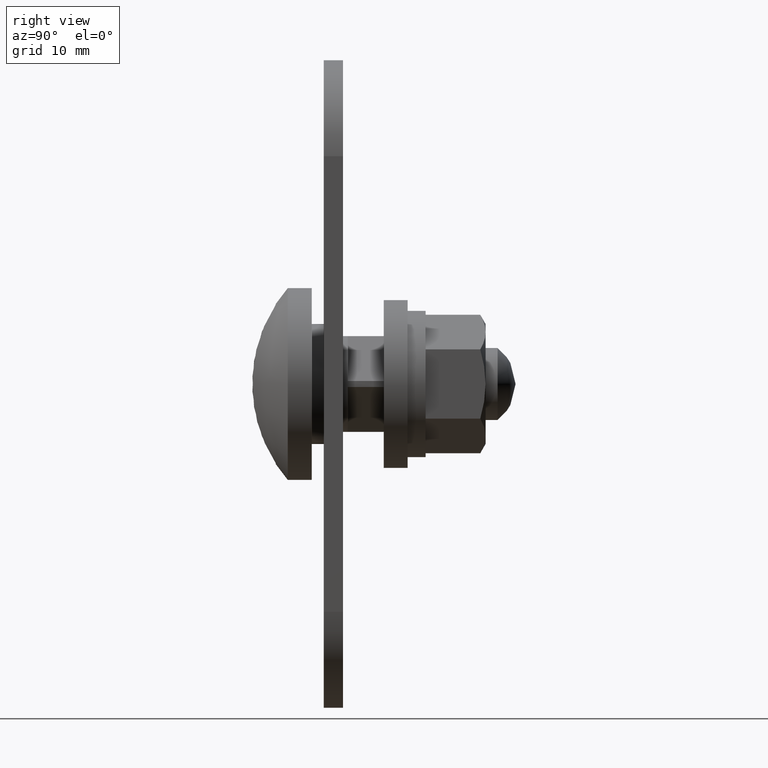
[diagram: clean part render]
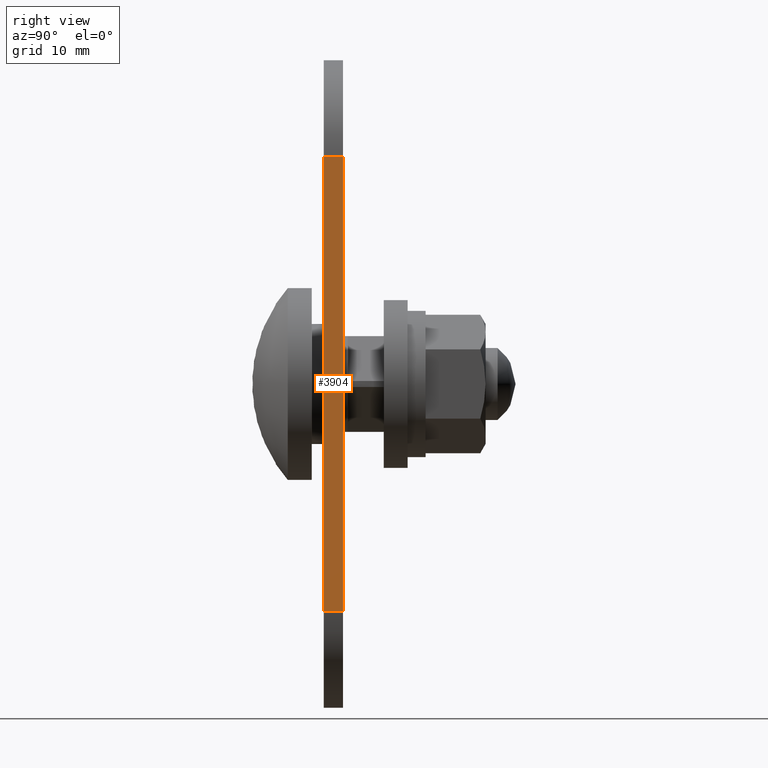
[diagram: same view with one face highlighted and labeled with its STEP entity id]
A machine part, right view. The second image highlights one B-rep face of the part: STEP entity #3904.
In plain terms, the highlighted face is a freeform B-spline surface patch.
Its self-contained STEP definition (entity closure, byte-faithful):
#3596=CARTESIAN_POINT('',(8.0,-1.599990999999965,19.0));
#3597=VERTEX_POINT('',#3596);
#3598=CARTESIAN_POINT('',(8.0,-1.599990999999965,-19.0));
#3599=VERTEX_POINT('',#3598);
#3600=CARTESIAN_POINT('',(8.0,-1.599990999999965,19.0));
#3601=CARTESIAN_POINT('',(8.0,-1.599990999999965,-19.0));
#3602=QUASI_UNIFORM_CURVE('',1,(#3600,#3601),.UNSPECIFIED.,.F.,.U.);
#3603=EDGE_CURVE('',#3597,#3599,#3602,.T.);
#3706=CARTESIAN_POINT('',(8.0,0.0,19.0));
#3707=VERTEX_POINT('',#3706);
#3708=CARTESIAN_POINT('',(8.0,0.0,-19.0));
#3709=VERTEX_POINT('',#3708);
#3710=CARTESIAN_POINT('',(8.0,0.0,19.0));
#3711=CARTESIAN_POINT('',(8.0,0.0,-19.0));
#3712=QUASI_UNIFORM_CURVE('',1,(#3710,#3711),.UNSPECIFIED.,.F.,.U.);
#3713=EDGE_CURVE('',#3707,#3709,#3712,.T.);
#3831=CARTESIAN_POINT('',(8.0,0.0,19.0));
#3832=CARTESIAN_POINT('',(8.0,-1.599990999999965,19.0));
#3833=QUASI_UNIFORM_CURVE('',1,(#3831,#3832),.UNSPECIFIED.,.F.,.U.);
#3834=EDGE_CURVE('',#3707,#3597,#3833,.T.);
#3885=CARTESIAN_POINT('',(8.0,0.0,-19.0));
#3886=CARTESIAN_POINT('',(8.0,-1.599990999999965,-19.0));
#3887=QUASI_UNIFORM_CURVE('',1,(#3885,#3886),.UNSPECIFIED.,.F.,.U.);
#3888=EDGE_CURVE('',#3709,#3599,#3887,.T.);
#3893=CARTESIAN_POINT('',(8.0,-1.679910517309729,-20.898099926348628));
#3894=CARTESIAN_POINT('',(8.0,-1.679910517309729,20.898100945588052));
#3895=CARTESIAN_POINT('',(8.0,0.079919588834935,-20.898099926348628));
#3896=CARTESIAN_POINT('',(8.0,0.079919588834935,20.898100945588052));
#3897=B_SPLINE_SURFACE_WITH_KNOTS('',1,1,((#3893,#3895),(#3894,#3896)),.UNSPECIFIED.,.F.,.F.,.U.,(2,2),(2,2),(0.0,41.796200871936684),(0.041708350593969,0.958291686658934),.UNSPECIFIED.);
#3898=ORIENTED_EDGE('',*,*,#3603,.T.);
#3899=ORIENTED_EDGE('',*,*,#3888,.F.);
#3900=ORIENTED_EDGE('',*,*,#3713,.F.);
#3901=ORIENTED_EDGE('',*,*,#3834,.T.);
#3902=EDGE_LOOP('',(#3898,#3899,#3900,#3901));
#3903=FACE_OUTER_BOUND('',#3902,.T.);
#3904=ADVANCED_FACE('',(#3903),#3897,.F.);